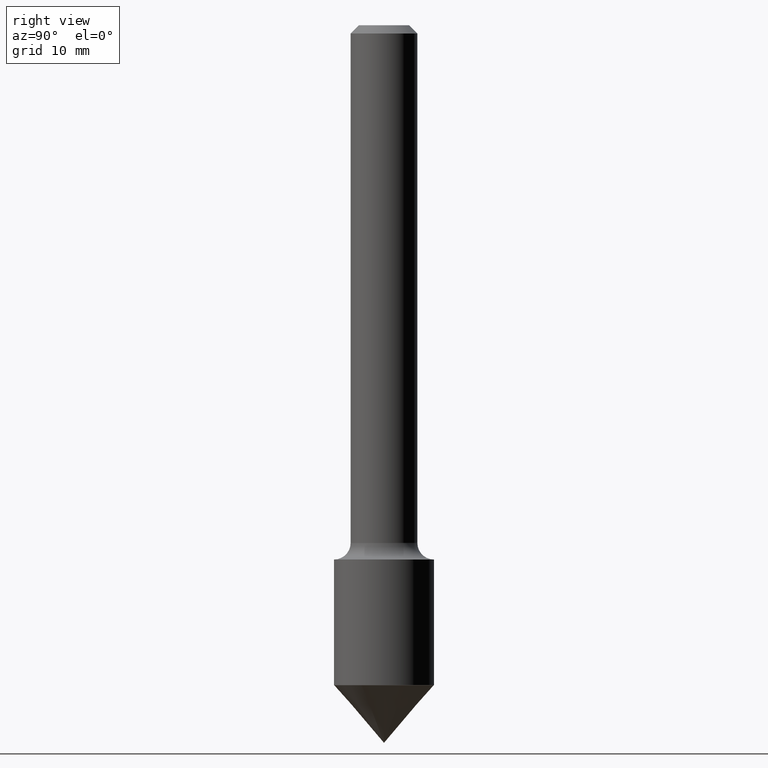
[diagram: clean part render]
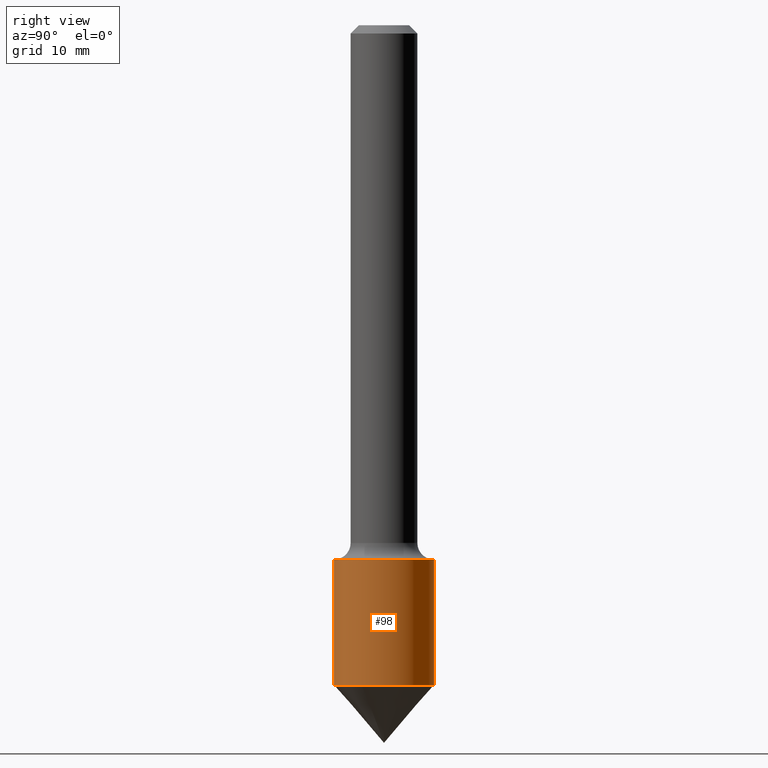
[diagram: same view with one face highlighted and labeled with its STEP entity id]
A machine part, right view. The second image highlights one B-rep face of the part: STEP entity #98.
In plain terms, the highlighted cylindrical surface (partial cylindrical patch) has radius 4.7625 mm, axis along (-0, 0, 1).
Its self-contained STEP definition (entity closure, byte-faithful):
#21 = EDGE_CURVE ( 'NONE', #383, #174, #237, .T. ) ;
#30 = EDGE_CURVE ( 'NONE', #491, #174, #332, .T. ) ;
#35 = DIRECTION ( 'NONE',  ( -6.982962677686265133E-15, -1.000000000000000000, 2.913971193241887077E-15 ) ) ;
#40 = DIRECTION ( 'NONE',  ( -6.982962677686266711E-15, -1.000000000000000000, 2.913971193241888261E-15 ) ) ;
#87 = EDGE_LOOP ( 'NONE', ( #379, #427, #260, #246 ) ) ;
#98 = ADVANCED_FACE ( 'NONE', ( #396 ), #238, .T. ) ;
#109 = VECTOR ( 'NONE', #423, 39.37007874015748143 ) ;
#121 = DIRECTION ( 'NONE',  ( -2.429224719885951237E-29, 3.514743794979554009E-15, 1.000000000000000000 ) ) ;
#131 = DIRECTION ( 'NONE',  ( -6.982962677686265133E-15, -1.000000000000000000, 3.514743794979553615E-15 ) ) ;
#142 = AXIS2_PLACEMENT_3D ( 'NONE', #418, #159, #40 ) ;
#147 = AXIS2_PLACEMENT_3D ( 'NONE', #299, #121, #131 ) ;
#151 = DIRECTION ( 'NONE',  ( -2.429224719885951237E-29, 3.514743794979554009E-15, 1.000000000000000000 ) ) ;
#159 = DIRECTION ( 'NONE',  ( -2.429224719885951237E-29, 3.514743794979554009E-15, 1.000000000000000000 ) ) ;
#163 = CARTESIAN_POINT ( 'NONE',  ( -1.309305502066111702E-15, -0.1875000000000082712, -2.473305923646059057 ) ) ;
#167 = CARTESIAN_POINT ( 'NONE',  ( -1.309305502066122352E-15, -0.1875000000000064670, -2.002999999999999226 ) ) ;
#174 = VERTEX_POINT ( 'NONE', #242 ) ;
#188 = CARTESIAN_POINT ( 'NONE',  ( -1.309305502066171853E-15, -0.1874999999999995837, 6.590144615586648236E-16 ) ) ;
#213 = CIRCLE ( 'NONE', #261, 0.1874999999999995837 ) ;
#233 = CARTESIAN_POINT ( 'NONE',  ( 1.332267629550184496E-15, 0.1874999999999995837, -6.590144615586648236E-16 ) ) ;
#237 = LINE ( 'NONE', #233, #109 ) ;
#238 = CYLINDRICAL_SURFACE ( 'NONE', #147, 0.1874999999999995837 ) ;
#242 = CARTESIAN_POINT ( 'NONE',  ( 1.332267629550232814E-15, 0.1874999999999924782, -2.003000000000000558 ) ) ;
#246 = ORIENTED_EDGE ( 'NONE', *, *, #356, .F. ) ;
#260 = ORIENTED_EDGE ( 'NONE', *, *, #30, .F. ) ;
#261 = AXIS2_PLACEMENT_3D ( 'NONE', #375, #270, #35 ) ;
#270 = DIRECTION ( 'NONE',  ( -2.429224719885951237E-29, 3.514743794979554009E-15, 1.000000000000000000 ) ) ;
#299 = CARTESIAN_POINT ( 'NONE',  ( 0.000000000000000000, 0.000000000000000000, 0.000000000000000000 ) ) ;
#331 = LINE ( 'NONE', #188, #424 ) ;
#332 = CIRCLE ( 'NONE', #142, 0.1874999999999995282 ) ;
#356 = EDGE_CURVE ( 'NONE', #463, #491, #331, .T. ) ;
#370 = EDGE_CURVE ( 'NONE', #463, #383, #213, .T. ) ;
#375 = CARTESIAN_POINT ( 'NONE',  ( 6.008215889561363554E-29, -8.693036648221162400E-15, -2.473305923646059945 ) ) ;
#379 = ORIENTED_EDGE ( 'NONE', *, *, #370, .T. ) ;
#383 = VERTEX_POINT ( 'NONE', #453 ) ;
#396 = FACE_OUTER_BOUND ( 'NONE', #87, .T. ) ;
#418 = CARTESIAN_POINT ( 'NONE',  ( 4.865737113931559965E-29, -7.040031821344046815E-15, -2.003000000000000114 ) ) ;
#423 = DIRECTION ( 'NONE',  ( -2.429224719885951237E-29, 3.514743794979554009E-15, 1.000000000000000000 ) ) ;
#424 = VECTOR ( 'NONE', #151, 39.37007874015748143 ) ;
#427 = ORIENTED_EDGE ( 'NONE', *, *, #21, .T. ) ;
#453 = CARTESIAN_POINT ( 'NONE',  ( 1.332267629550239124E-15, 0.1874999999999908684, -2.473305923646060389 ) ) ;
#463 = VERTEX_POINT ( 'NONE', #163 ) ;
#491 = VERTEX_POINT ( 'NONE', #167 ) ;